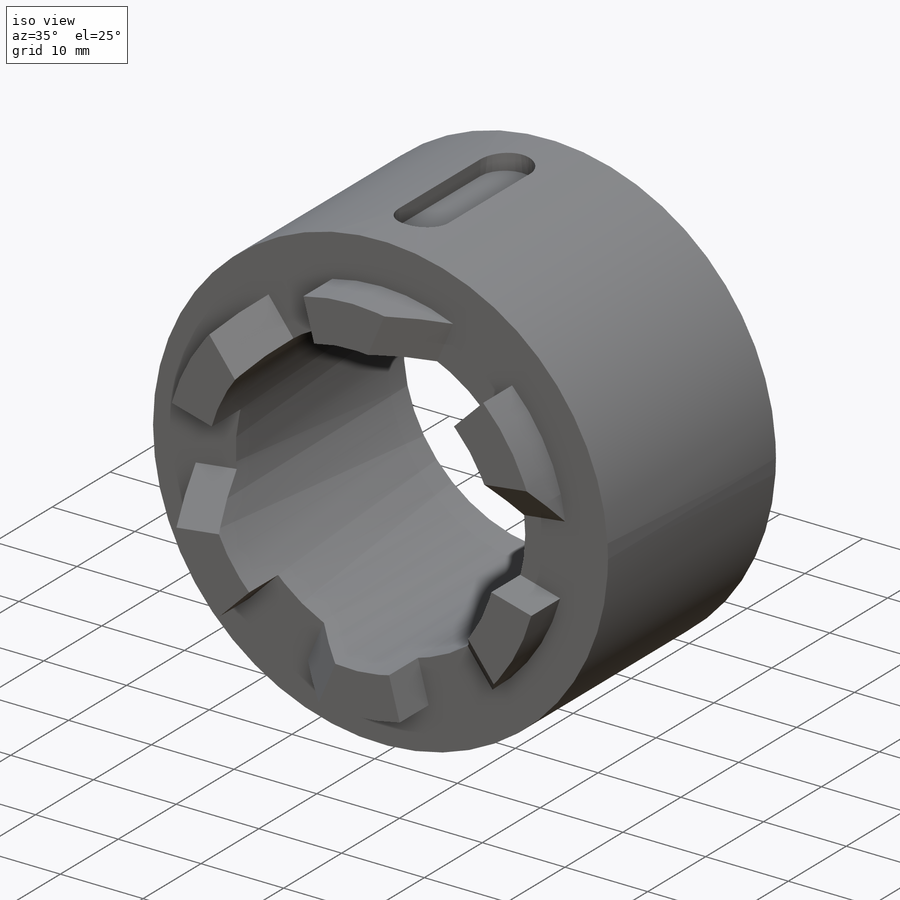
[diagram: iso view]
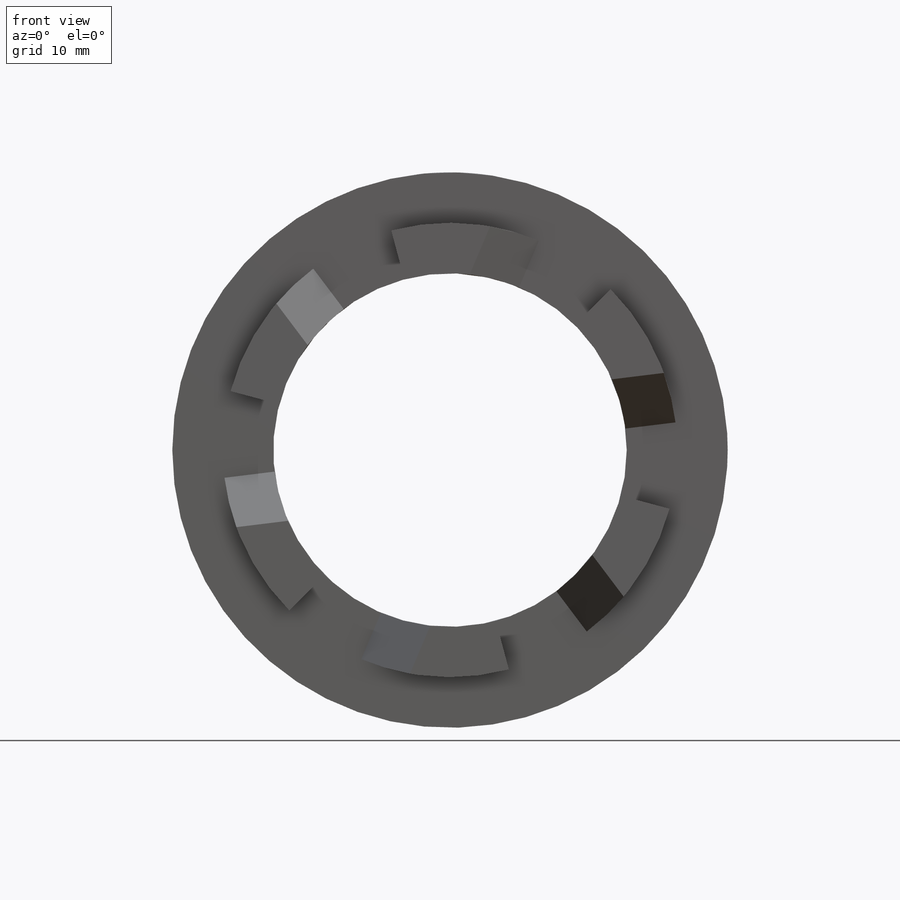
[diagram: front view]
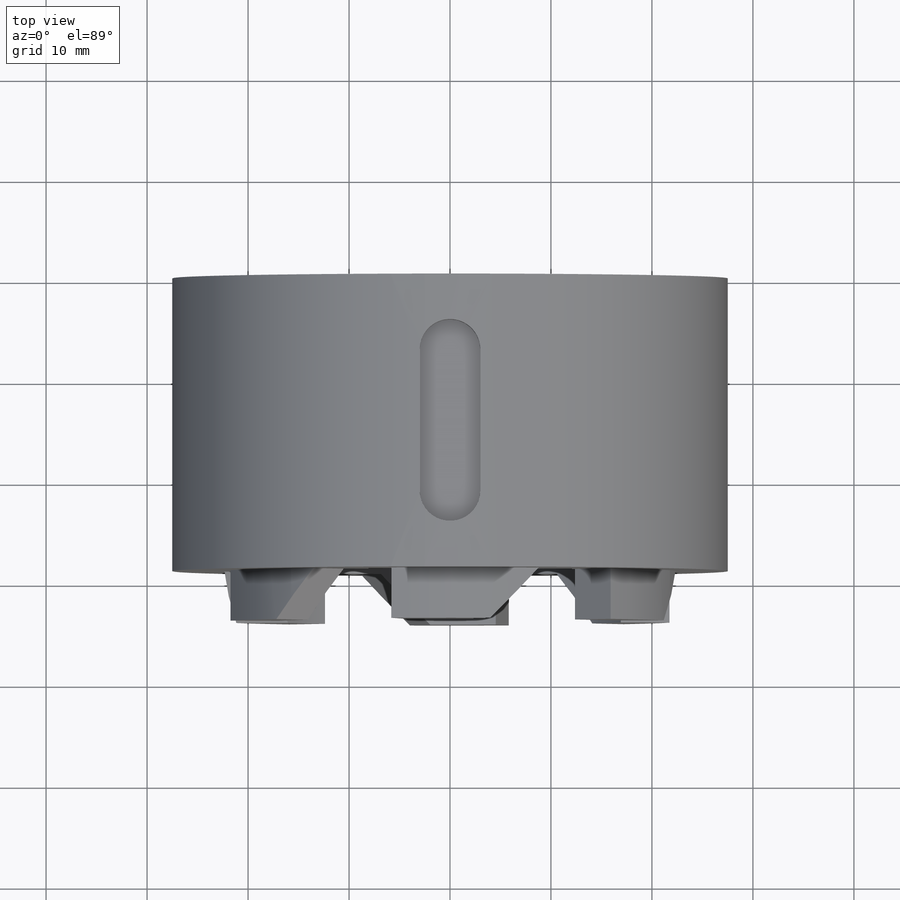
[diagram: top view]
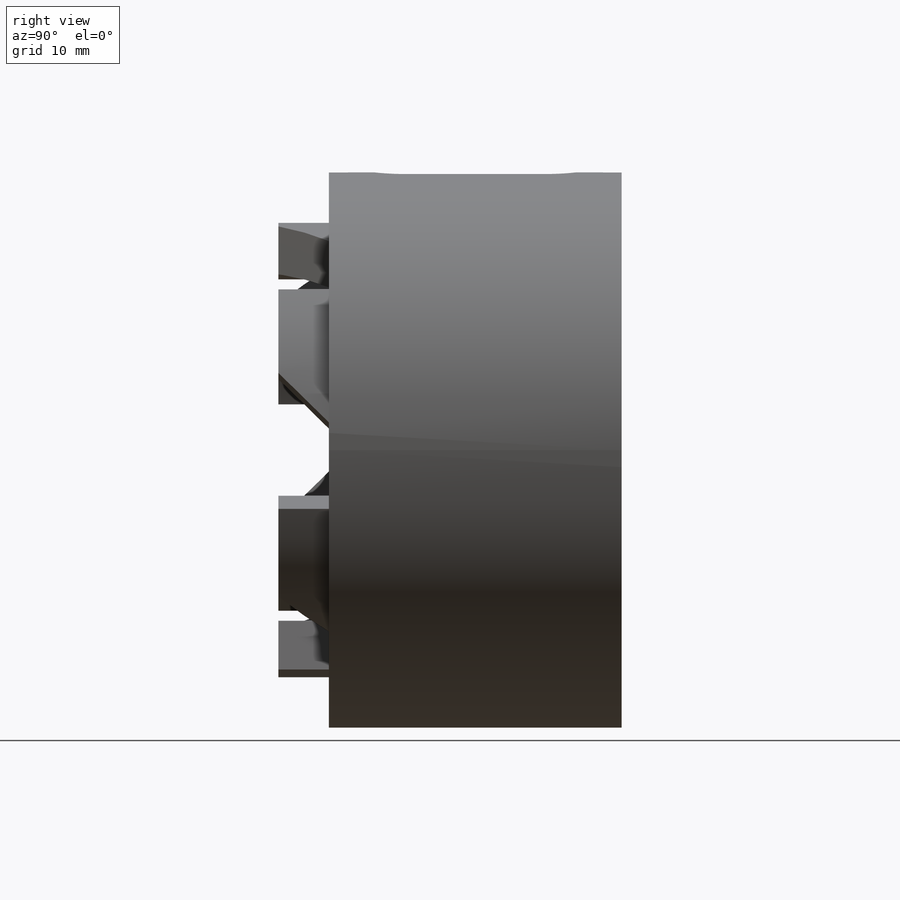
[diagram: right view]
SOLIDWORKS PART (.sldprt)
format: sldprt  version: not decoded by parser v0  size: 272,384 bytes
history: native  units: mm
features: sketch x4, extrude x2, cut_extrude x2, material x1, plane x1, chamfer x1, pattern_circular x1 (+16 scaffold rows collapsed)
feature tree (28):
  scaffold x16  (default folders/planes/origin — collapsed)
  material  "1023 Carbon Steel Sheet (SS)"
  sketch  "Sketch1"  dims[D1=55.0mm]
  extrude  "Extrude1"  Depth=29mm
  sketch  "Sketch2"  dims[D1=35.0mm]
  cut_extrude  "Extrude2"  Depth=75mm
  sketch  "Sketch3"  dims[c1.D2=~44.099572mm c1.D1=9.0mm c2.D2=5.0mm c2.D3=~4.866183mm c3.D3=~26.571262deg c4.D3=~4.869098mm c5.D3=~26.571262deg c5.D1=22.5mm c6.D1=30.0deg c6.D3=~4.619398mm c7.D3=45.0deg c8.D3=~17.220754mm c8.D4=~36.729772mm c9.D4=60.0deg c9.D5=~33.016385mm c10.D5=60.0deg c10.D6=~36.185856mm c11.D6=60.0deg c12.D6=~35.056322mm c13.D6=60.0deg c13.D7=~29.60494mm c14.D7=60.0deg c14.D8=~35.572613mm c15.D8=60.0deg c15.D4=~35.572613mm c16.D4=60.0deg c16.D1=~31.187267mm c17.D1=60.0deg c18.D1=~27.786741mm c19.D1=60.0deg c19.D3=~19.485572mm c20.D3=60.0deg c21.D3=22.5mm c22.D3=30.0deg c22.D4=22.5mm c22.D1=~20.272677mm c23.D1=30.0deg c23.D3=22.5mm c24.D3=60.0deg c24.D4=~18.270648mm c25.D4=30.0deg c25.D5=~19.665777mm c26.D5=60.0deg c26.D6=~22.110604mm c27.D6=30.0deg c27.D7=5.0mm c28.D7=30.0deg c29.D7=5.0mm c30.D7=15.0deg c31.D7=~4.829629mm c32.D7=15.0deg c33.D7=~11.646857mm c33.D8=~11.646857mm c33.D9=~11.646857mm c33.D1=5.0mm c33.D2=~21.733331mm c34.D2=30.0deg c34.D3=~15.339429mm c35.D3=15.0deg c36.D3=~15.339429mm c37.D3=15.0deg c37.D2=~21.733331mm c38.D2=23.0deg c38.D4=5.0mm c38.D5=5.0mm]
  plane  "Plane1"  Offset=27.5mm
  sketch  "Sketch4"  dims[c1.D2=3.0mm c1.D1=6.0mm c2.D2=20.0mm c2.D3=7.5mm]
  cut_extrude  "Extrude4"  Depth=2mm
  extrude  "Boss-Extrude1"  Depth=5mm
  chamfer  "Chamfer1"  Distance=5mm Angle=45deg
  pattern_circular  "CirPattern6"  Count=6 Angle=60deg
decode coverage: 10 of 10 modeling features carry decoded parameters
note: ~ marks probable driven/reference dimensions
note: suppression state not decoded; provenance and decode notes live in map.json
